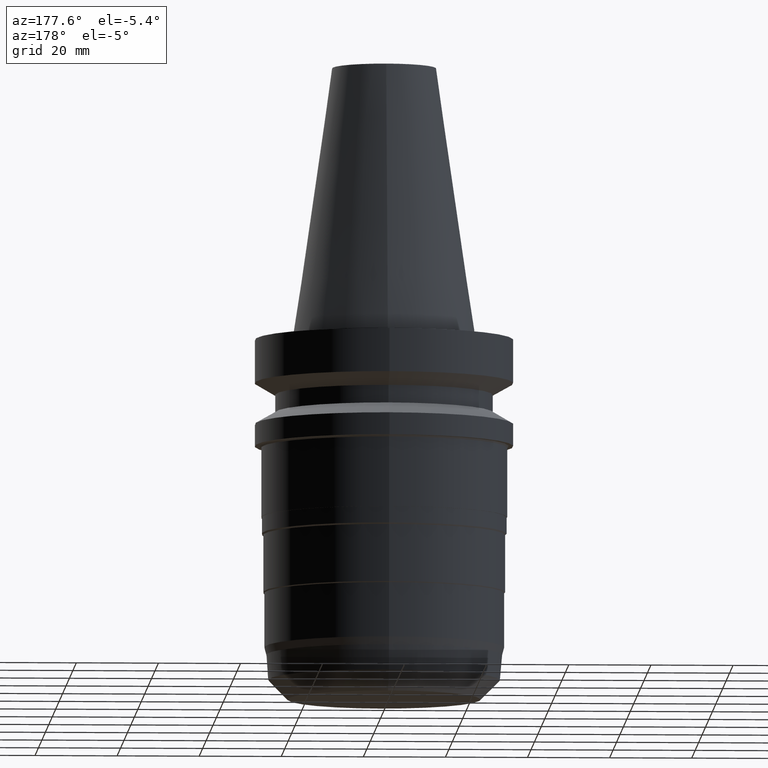
[diagram: clean part render]
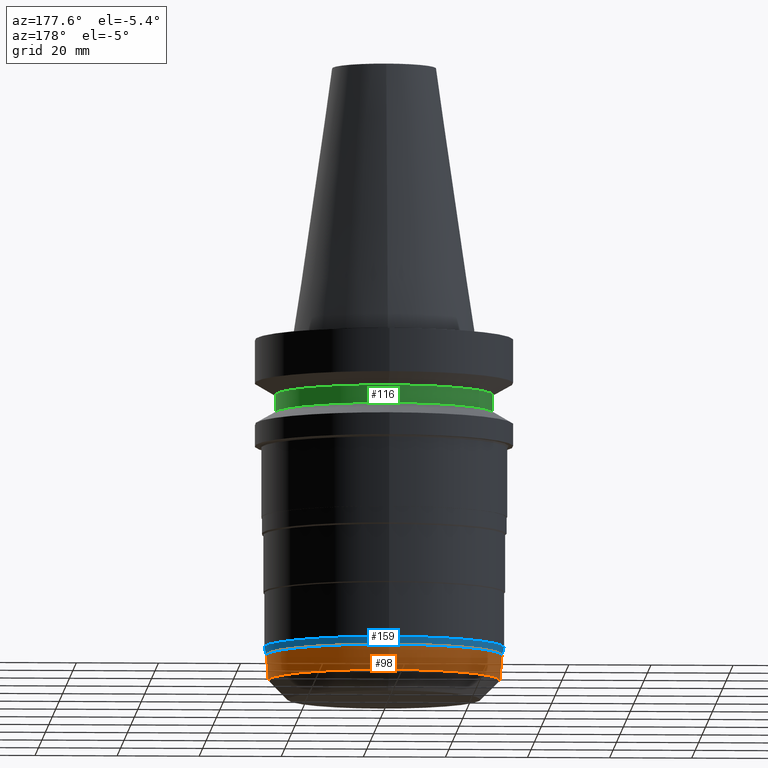
[diagram: same view with three faces highlighted in distinct colors, each labeled with its STEP entity id]
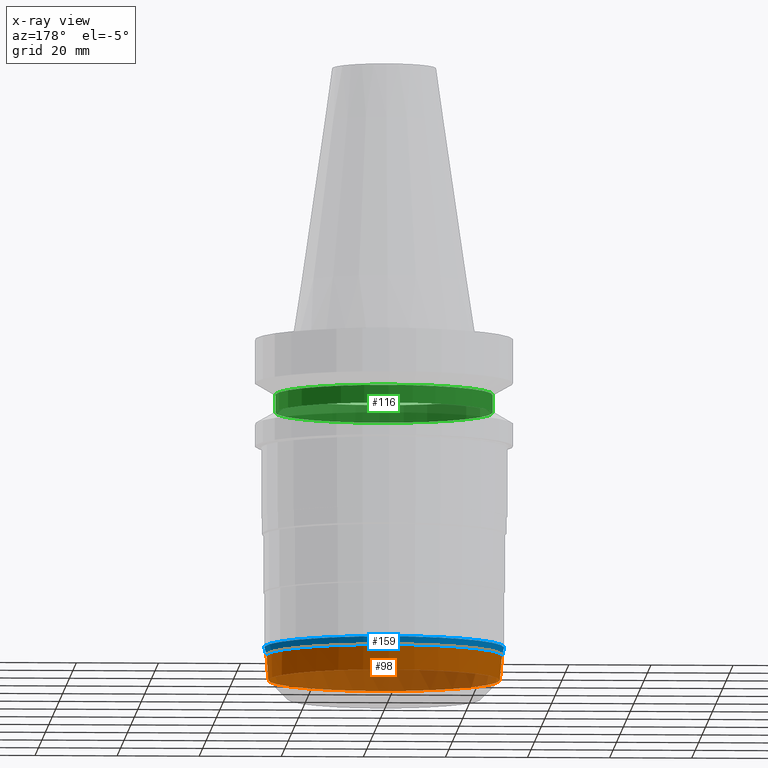
[diagram: x-ray of the same camera — body ghosted, the three highlighted faces saturated]
A machine part, auxiliary view with three faces highlighted in distinct colors.
The next image is the same camera in x-ray (body ghosted, the three faces saturated) — at least one of them is partly hidden behind the body in this view.
Their STEP definitions:

[orange] entity #98 — the highlighted conical surface has half-angle 5 deg.
#98=ADVANCED_FACE('Unnamed[1]',(#243,#244),#245,.T.);
#133=EDGE_CURVE('Unnamed[1]',#297,#297,#298,.T.);
#145=EDGE_CURVE('Unnamed[1]',#316,#316,#317,.T.);
#243=FACE_BOUND('',#435,.T.);
#244=FACE_BOUND('',#436,.T.);
#245=CONICAL_SURFACE('',#437,28.4823132001958,0.0872664632443561);
#297=VERTEX_POINT('',#502);
#298=CIRCLE('',#503,28.75);
#316=VERTEX_POINT('',#526);
#317=CIRCLE('',#527,28.2146264003915);
#435=EDGE_LOOP('',(#647));
#436=EDGE_LOOP('',(#648));
#437=AXIS2_PLACEMENT_3D('',#649,#650,#651);
#502=CARTESIAN_POINT('',(4.7801654064133E-015,28.75,-78.0660254));
#503=AXIS2_PLACEMENT_3D('',#706,#707,#708);
#526=CARTESIAN_POINT('',(5.15486741568923E-015,28.2146264003915,-84.1853735996085));
#527=AXIS2_PLACEMENT_3D('',#727,#728,#729);
#647=ORIENTED_EDGE('',*,*,#145,.F.);
#648=ORIENTED_EDGE('',*,*,#133,.T.);
#649=CARTESIAN_POINT('',(4.96751641105126E-015,9.93503282210253E-015,-81.1256994998042));
#650=DIRECTION('',(-6.12323399573677E-017,-1.22464679914756E-016,1.0));
#651=DIRECTION('',(-1.23259516440763E-032,1.0,1.22464679914756E-016));
#706=CARTESIAN_POINT('',(4.7801654064133E-015,9.5603308128266E-015,-78.0660254));
#707=DIRECTION('',(6.12323399573677E-017,1.22464679914716E-016,-1.0));
#708=DIRECTION('',(-1.23259516440783E-032,1.0,1.22464679914716E-016));
#727=CARTESIAN_POINT('',(5.15486741568923E-015,1.03097348313785E-014,-84.1853735996085));
#728=DIRECTION('',(6.12323399573677E-017,1.22464679914738E-016,-1.0));
#729=DIRECTION('',(-1.23259516440806E-032,1.0,1.22464679914738E-016));

[blue] entity #159 — the highlighted conical surface has half-angle 15 deg.
#108=EDGE_CURVE('Unnamed[1]',#259,#259,#260,.T.);
#133=EDGE_CURVE('Unnamed[1]',#297,#297,#298,.T.);
#159=ADVANCED_FACE('Unnamed[1]',(#336,#337),#338,.T.);
#259=VERTEX_POINT('',#455);
#260=CIRCLE('',#456,29.25);
#297=VERTEX_POINT('',#502);
#298=CIRCLE('',#503,28.75);
#336=FACE_BOUND('',#552,.T.);
#337=FACE_BOUND('',#553,.T.);
#338=CONICAL_SURFACE('',#554,29.0,0.261799388306166);
#455=CARTESIAN_POINT('',(4.66590430475142E-015,29.25,-76.2));
#456=AXIS2_PLACEMENT_3D('',#666,#667,#668);
#502=CARTESIAN_POINT('',(4.7801654064133E-015,28.75,-78.0660254));
#503=AXIS2_PLACEMENT_3D('',#706,#707,#708);
#552=EDGE_LOOP('',(#748));
#553=EDGE_LOOP('',(#749));
#554=AXIS2_PLACEMENT_3D('',#750,#751,#752);
#666=CARTESIAN_POINT('',(4.66590430475142E-015,9.33180860950283E-015,-76.2));
#667=DIRECTION('',(6.12323399573677E-017,1.22464679914762E-016,-1.0));
#668=DIRECTION('',(-1.23259516440783E-032,1.0,1.22464679914762E-016));
#706=CARTESIAN_POINT('',(4.7801654064133E-015,9.5603308128266E-015,-78.0660254));
#707=DIRECTION('',(6.12323399573677E-017,1.22464679914716E-016,-1.0));
#708=DIRECTION('',(-1.23259516440783E-032,1.0,1.22464679914716E-016));
#748=ORIENTED_EDGE('',*,*,#133,.F.);
#749=ORIENTED_EDGE('',*,*,#108,.T.);
#750=CARTESIAN_POINT('',(4.72303485558236E-015,9.44606971116471E-015,-77.1330127));
#751=DIRECTION('',(-6.12323399573677E-017,-1.22464679914712E-016,1.0));
#752=DIRECTION('',(-1.23259516440783E-032,1.0,1.22464679914712E-016));

[green] entity #116 — the highlighted cylindrical surface (bore or boss wall) has radius 26.5 mm, axis along (0, 0, -1).
#74=EDGE_CURVE('Unnamed[1]',#205,#205,#206,.T.);
#116=ADVANCED_FACE('Unnamed[1]',(#271,#272),#273,.T.);
#123=EDGE_CURVE('Unnamed[1]',#281,#281,#282,.T.);
#205=VERTEX_POINT('',#388);
#206=CIRCLE('',#389,26.4999999999995);
#271=FACE_BOUND('',#470,.T.);
#272=FACE_BOUND('',#471,.T.);
#273=CYLINDRICAL_SURFACE('',#472,26.4999999999997);
#281=VERTEX_POINT('',#482);
#282=CIRCLE('',#483,26.5);
#388=CARTESIAN_POINT('',(8.8494551369045E-016,26.4999999999995,-14.4522569986152));
#389=AXIS2_PLACEMENT_3D('',#604,#605,#606);
#470=EDGE_LOOP('',(#679));
#471=EDGE_LOOP('',(#680));
#472=AXIS2_PLACEMENT_3D('',#681,#682,#683);
#482=CARTESIAN_POINT('',(1.1479681728942E-015,26.5,-18.7477430013855));
#483=AXIS2_PLACEMENT_3D('',#688,#689,#690);
#604=CARTESIAN_POINT('',(8.8494551369045E-016,1.7698910273809E-015,-14.4522569986152));
#605=DIRECTION('',(6.12323399573677E-017,1.22464679914706E-016,-1.0));
#606=DIRECTION('',(-1.23259516440786E-032,1.0,1.22464679914706E-016));
#679=ORIENTED_EDGE('',*,*,#123,.F.);
#680=ORIENTED_EDGE('',*,*,#74,.T.);
#681=CARTESIAN_POINT('',(1.01645684329232E-015,2.03291368658465E-015,-16.6000000000004));
#682=DIRECTION('',(6.12323399573676E-017,1.22464679914765E-016,-1.0));
#683=DIRECTION('',(-1.23259516440784E-032,1.0,1.22464679914765E-016));
#688=CARTESIAN_POINT('',(1.1479681728942E-015,2.29593634578839E-015,-18.7477430013855));
#689=DIRECTION('',(6.12323399573677E-017,1.22464679914764E-016,-1.0));
#690=DIRECTION('',(-1.23259516440783E-032,1.0,1.22464679914764E-016));